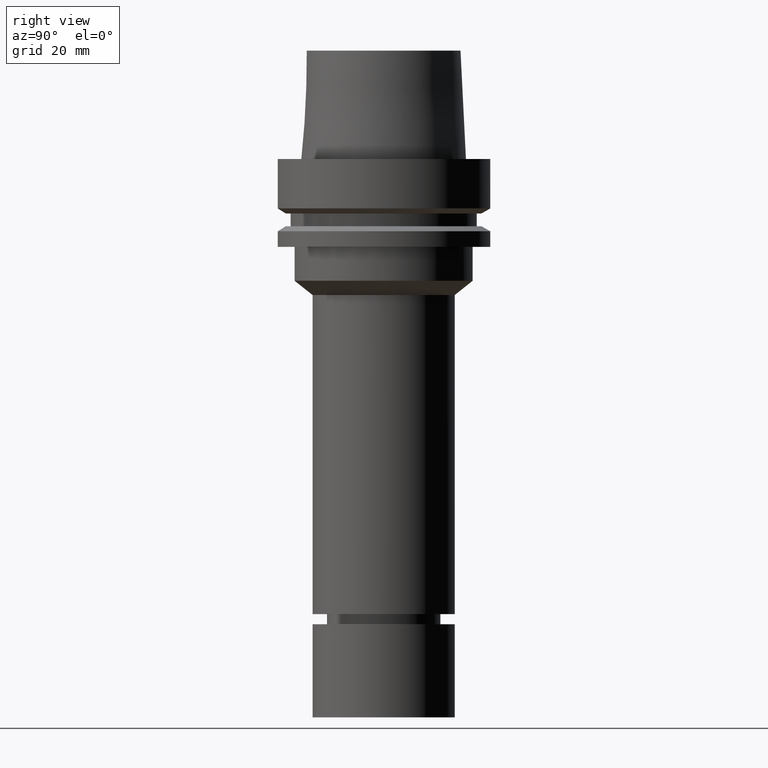
[diagram: clean part render]
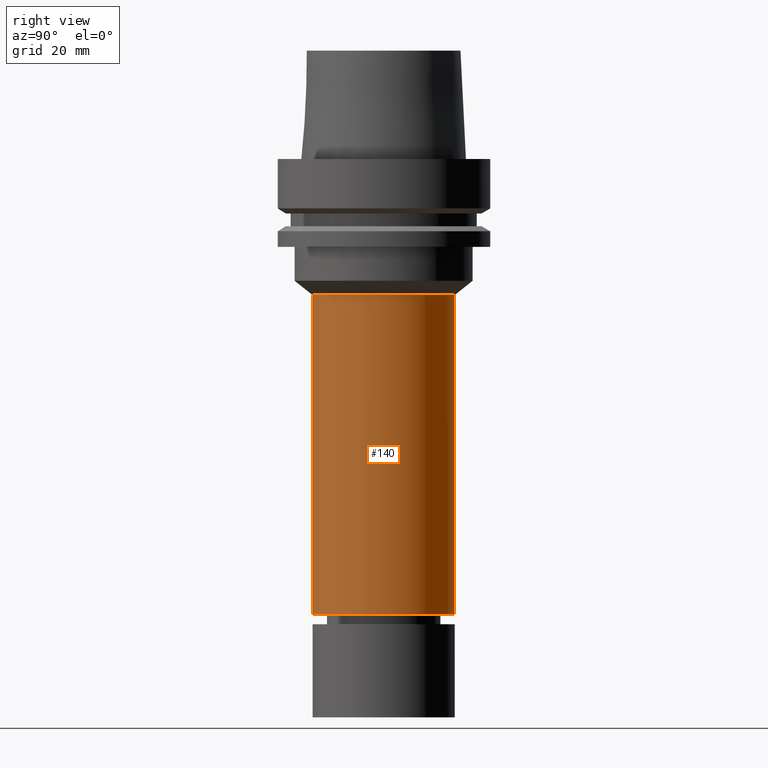
[diagram: same view with one face highlighted and labeled with its STEP entity id]
A machine part, right view. The second image highlights one B-rep face of the part: STEP entity #140.
In plain terms, the highlighted cylindrical surface (bore or boss wall) has radius 21 mm, axis along (-0, -0, 1).
Its self-contained STEP definition (entity closure, byte-faithful):
#118=EDGE_CURVE('Unnamed[1]',#274,#274,#275,.T.);
#140=ADVANCED_FACE('Unnamed[1]',(#308,#309),#310,.T.);
#192=EDGE_CURVE('Unnamed[1]',#389,#389,#390,.T.);
#274=VERTEX_POINT('',#480);
#275=CIRCLE('',#481,21.0);
#308=FACE_BOUND('',#523,.T.);
#309=FACE_BOUND('',#524,.T.);
#310=CYLINDRICAL_SURFACE('',#525,21.0);
#389=VERTEX_POINT('',#623);
#390=CIRCLE('',#624,21.0);
#480=CARTESIAN_POINT('',(2.46243754685596E-015,21.0,-40.21465697));
#481=AXIS2_PLACEMENT_3D('',#695,#696,#697);
#523=EDGE_LOOP('',(#732));
#524=EDGE_LOOP('',(#733));
#525=AXIS2_PLACEMENT_3D('',#734,#735,#736);
#623=CARTESIAN_POINT('',(8.23574972426594E-015,21.0,-134.5));
#624=AXIS2_PLACEMENT_3D('',#823,#824,#825);
#695=CARTESIAN_POINT('',(2.46243754685597E-015,4.92487509371193E-015,-40.21465697));
#696=DIRECTION('',(-6.12323399573677E-017,-1.22464679914735E-016,1.0));
#697=DIRECTION('',(-1.23259516440783E-032,1.0,1.22464679914735E-016));
#732=ORIENTED_EDGE('',*,*,#118,.F.);
#733=ORIENTED_EDGE('',*,*,#192,.T.);
#734=CARTESIAN_POINT('',(5.34909363556095E-015,1.06981872711219E-014,-87.357328485));
#735=DIRECTION('',(-6.12323399573677E-017,-1.22464679914735E-016,1.0));
#736=DIRECTION('',(-1.23259516440783E-032,1.0,1.22464679914735E-016));
#823=CARTESIAN_POINT('',(8.23574972426594E-015,1.64714994485319E-014,-134.5));
#824=DIRECTION('',(-6.12323399573677E-017,-1.22464679914735E-016,1.0));
#825=DIRECTION('',(-1.23259516440783E-032,1.0,1.22464679914735E-016));